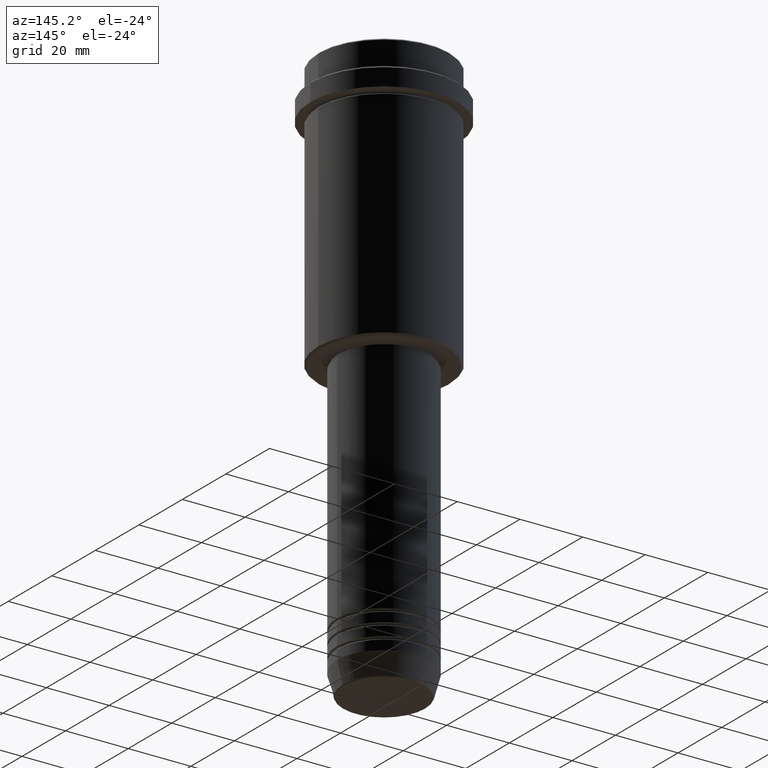
[diagram: clean part render]
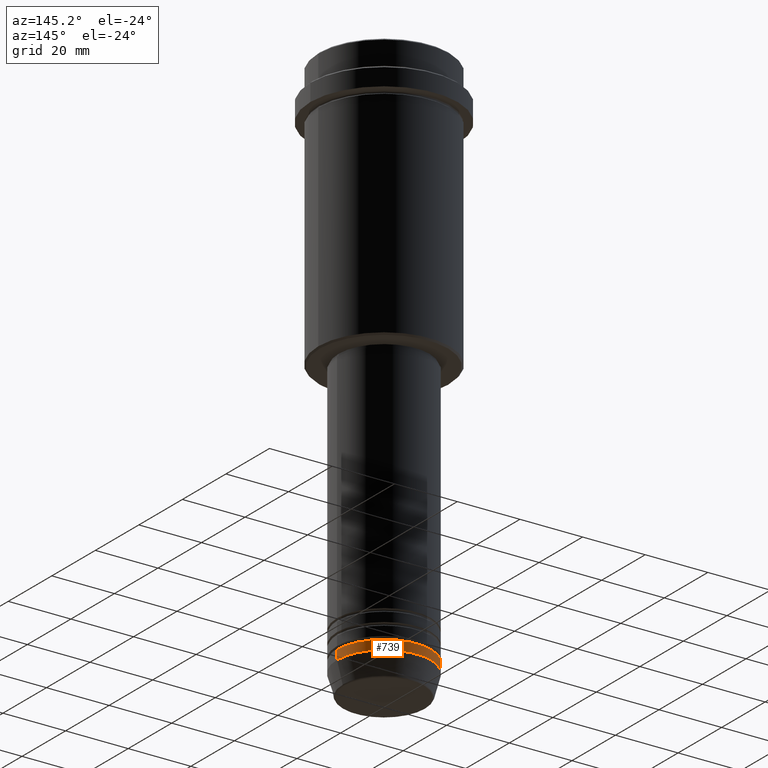
[diagram: same view with one face highlighted and labeled with its STEP entity id]
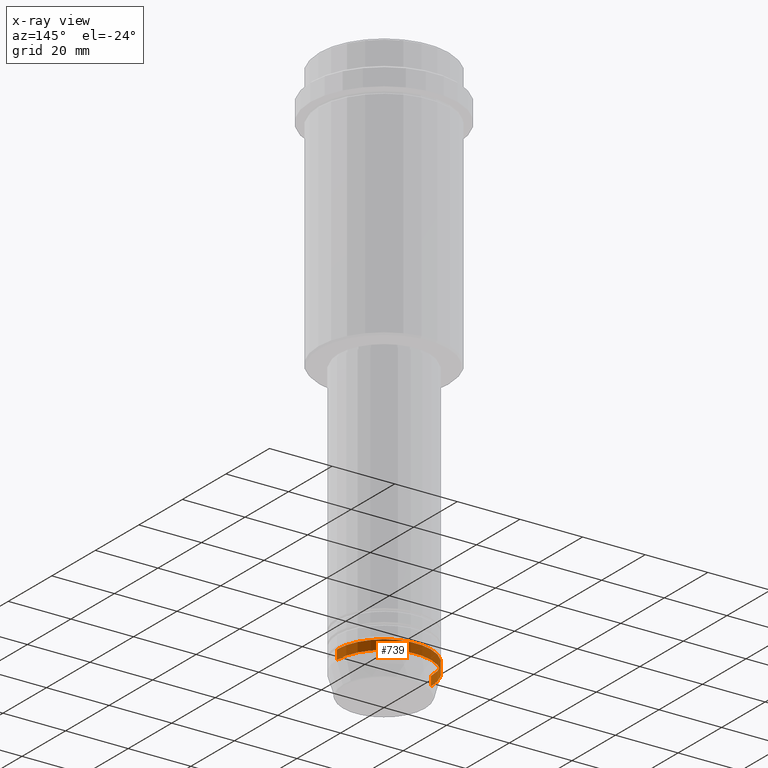
[diagram: x-ray of the same camera — body ghosted, the highlighted face saturated]
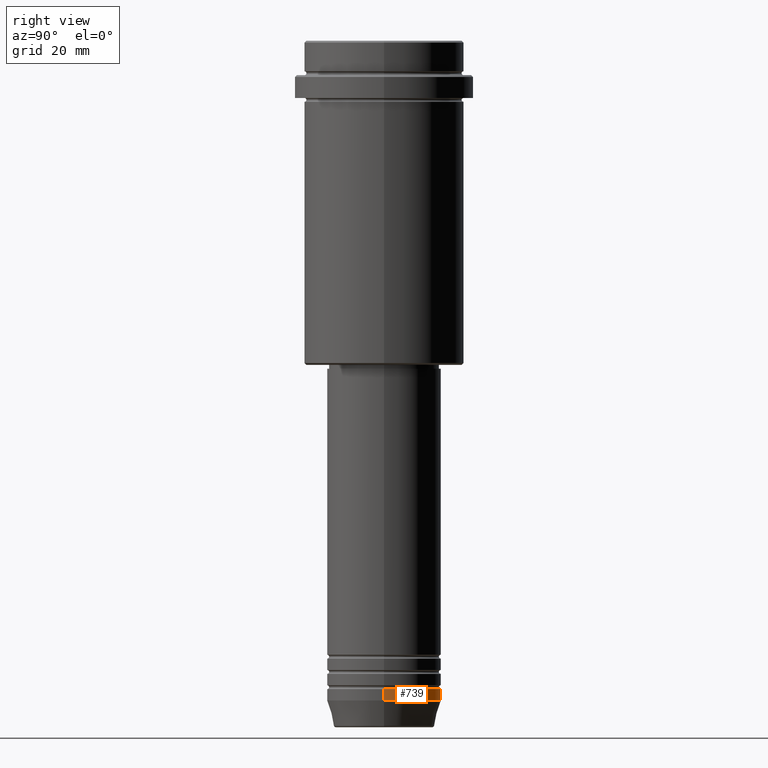
[diagram: same view with one face highlighted and labeled with its STEP entity id]
A machine part, auxiliary view. The second image highlights one B-rep face of the part: STEP entity #739.
The next image is the same camera in x-ray: the body ghosted, the highlighted face saturated — about 0% of this face is hidden behind the body in this view.
A second angle (right view) of the same face is appended — the face is thin or edge-on in the first view.
In plain terms, the highlighted cylindrical surface (partial cylindrical patch) has radius 15 mm, axis along (-0, -0, 1).
Its self-contained STEP definition (entity closure, byte-faithful):
#50 = AXIS2_PLACEMENT_3D ( 'NONE', #722, #1158, #1269 ) ;
#165 = AXIS2_PLACEMENT_3D ( 'NONE', #414, #758, #869 ) ;
#184 = CYLINDRICAL_SURFACE ( 'NONE', #50, 15.00000000000000000 ) ;
#186 = CARTESIAN_POINT ( 'NONE',  ( -15.00000000000000000, 1.836970198721029589E-15, -173.0000000000000000 ) ) ;
#254 = AXIS2_PLACEMENT_3D ( 'NONE', #852, #823, #1137 ) ;
#280 = ORIENTED_EDGE ( 'NONE', *, *, #1070, .T. ) ;
#310 = VERTEX_POINT ( 'NONE', #186 ) ;
#336 = CARTESIAN_POINT ( 'NONE',  ( -15.00000000000000000, 1.836970198721029589E-15, 0.000000000000000000 ) ) ;
#378 = CARTESIAN_POINT ( 'NONE',  ( 15.00000000000000000, 0.000000000000000000, -169.9999999999999716 ) ) ;
#383 = LINE ( 'NONE', #949, #863 ) ;
#412 = VERTEX_POINT ( 'NONE', #378 ) ;
#414 = CARTESIAN_POINT ( 'NONE',  ( 0.000000000000000000, 0.000000000000000000, -169.9999999999999716 ) ) ;
#418 = EDGE_CURVE ( 'NONE', #773, #310, #1122, .T. ) ;
#450 = EDGE_CURVE ( 'NONE', #412, #1376, #630, .T. ) ;
#511 = DIRECTION ( 'NONE',  ( -0.000000000000000000, -0.000000000000000000, 1.000000000000000000 ) ) ;
#540 = ORIENTED_EDGE ( 'NONE', *, *, #795, .F. ) ;
#630 = CIRCLE ( 'NONE', #165, 15.00000000000000000 ) ;
#670 = ORIENTED_EDGE ( 'NONE', *, *, #418, .T. ) ;
#706 = VECTOR ( 'NONE', #1223, 1000.000000000000000 ) ;
#722 = CARTESIAN_POINT ( 'NONE',  ( 0.000000000000000000, 0.000000000000000000, 0.000000000000000000 ) ) ;
#739 = ADVANCED_FACE ( 'NONE', ( #1151 ), #184, .T. ) ;
#758 = DIRECTION ( 'NONE',  ( -0.000000000000000000, -0.000000000000000000, 1.000000000000000000 ) ) ;
#768 = CARTESIAN_POINT ( 'NONE',  ( -15.00000000000000000, 1.836970198721029589E-15, -169.9999999999999716 ) ) ;
#773 = VERTEX_POINT ( 'NONE', #1050 ) ;
#784 = LINE ( 'NONE', #336, #706 ) ;
#795 = EDGE_CURVE ( 'NONE', #773, #412, #383, .T. ) ;
#823 = DIRECTION ( 'NONE',  ( -0.000000000000000000, -0.000000000000000000, 1.000000000000000000 ) ) ;
#852 = CARTESIAN_POINT ( 'NONE',  ( 0.000000000000000000, 0.000000000000000000, -173.0000000000000000 ) ) ;
#863 = VECTOR ( 'NONE', #511, 1000.000000000000000 ) ;
#869 = DIRECTION ( 'NONE',  ( 1.000000000000000000, 0.000000000000000000, 0.000000000000000000 ) ) ;
#949 = CARTESIAN_POINT ( 'NONE',  ( 15.00000000000000000, 0.000000000000000000, 0.000000000000000000 ) ) ;
#1050 = CARTESIAN_POINT ( 'NONE',  ( 15.00000000000000000, 0.000000000000000000, -173.0000000000000000 ) ) ;
#1070 = EDGE_CURVE ( 'NONE', #310, #1376, #784, .T. ) ;
#1122 = CIRCLE ( 'NONE', #254, 15.00000000000000000 ) ;
#1137 = DIRECTION ( 'NONE',  ( 1.000000000000000000, 0.000000000000000000, 0.000000000000000000 ) ) ;
#1151 = FACE_OUTER_BOUND ( 'NONE', #1362, .T. ) ;
#1158 = DIRECTION ( 'NONE',  ( -0.000000000000000000, -0.000000000000000000, 1.000000000000000000 ) ) ;
#1223 = DIRECTION ( 'NONE',  ( -0.000000000000000000, -0.000000000000000000, 1.000000000000000000 ) ) ;
#1269 = DIRECTION ( 'NONE',  ( 1.000000000000000000, 0.000000000000000000, 0.000000000000000000 ) ) ;
#1362 = EDGE_LOOP ( 'NONE', ( #670, #280, #1367, #540 ) ) ;
#1367 = ORIENTED_EDGE ( 'NONE', *, *, #450, .F. ) ;
#1376 = VERTEX_POINT ( 'NONE', #768 ) ;